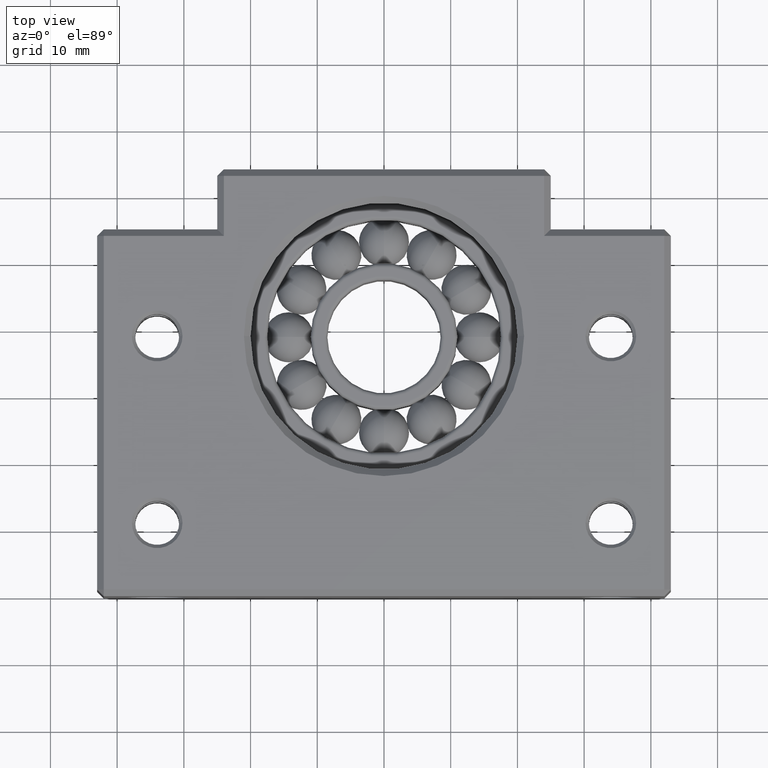
[diagram: clean part render]
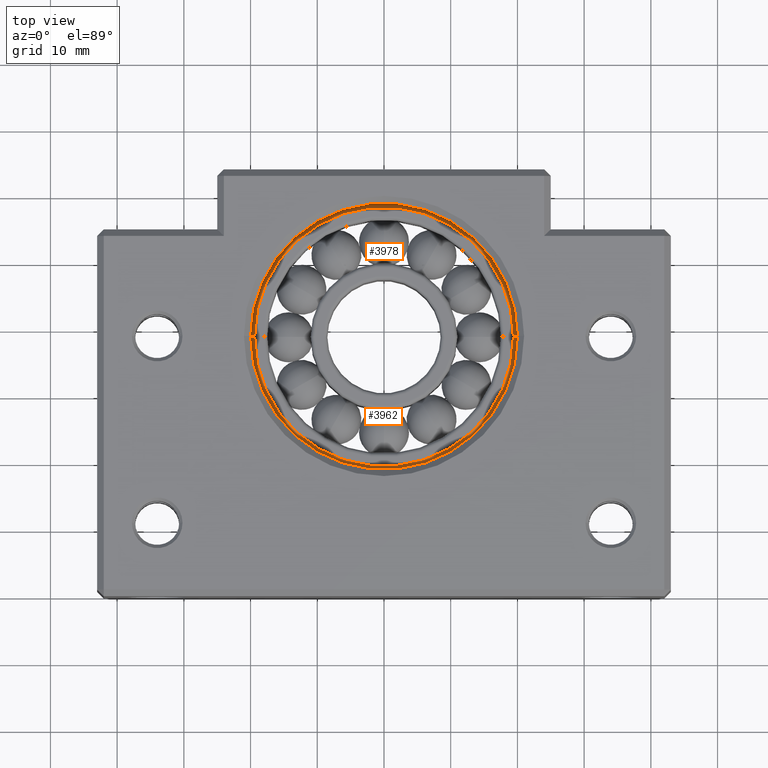
[diagram: same view with one multi-face feature highlighted, each face labeled with its STEP entity id]
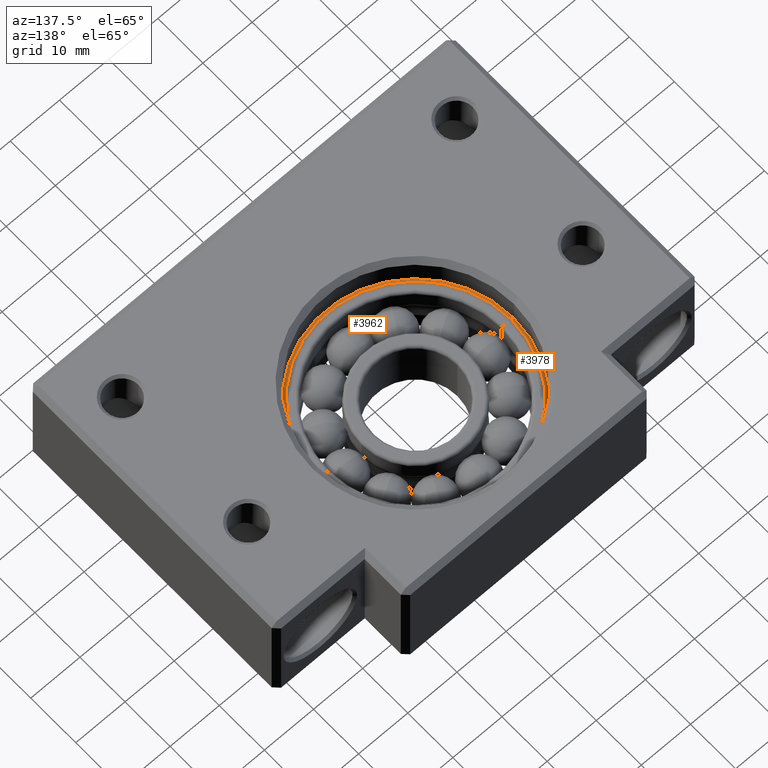
[diagram: same view with one multi-face feature highlighted, each face labeled with its STEP entity id]
A machine part, top view. The highlighted faces form ONE feature: a constant-radius fillet chain: 2 tangent blend faces with common blend radius 0.6 mm. The faces share edges in the B-rep.
A second angle (auxiliary view) of the same feature is appended — it is thin or edge-on in the first view.
Their STEP definitions:
[1] entity #3978 (Torus):
#2024 = CARTESIAN_POINT ( 'NONE',  ( -19.99999999999998600, 39.00000000000000700, 5.400000000000000400 ) ) ;
#2025 = CARTESIAN_POINT ( 'NONE',  ( 20.00000000000001400, 39.00000000000000700, 5.400000000000000400 ) ) ;
#2030 = DIRECTION ( 'NONE',  ( 1.000000000000000000, 0.0000000000000000000, 0.0000000000000000000 ) ) ;
#2031 = DIRECTION ( 'NONE',  ( -0.0000000000000000000, -0.0000000000000000000, 1.000000000000000000 ) ) ;
#2032 = CARTESIAN_POINT ( 'NONE',  ( 1.255275776586078800E-014, 39.00000000000000700, 5.400000000000000400 ) ) ;
#2033 = AXIS2_PLACEMENT_3D ( 'NONE', #2032, #2031, #2030 ) ;
#2034 = CIRCLE ( 'NONE', #2033, 20.00000000000000000 ) ;
#2036 = DIRECTION ( 'NONE',  ( 0.0000000000000000000, 0.0000000000000000000, -1.000000000000000000 ) ) ;
#2037 = DIRECTION ( 'NONE',  ( 0.0000000000000000000, -1.000000000000000000, 0.0000000000000000000 ) ) ;
#2038 = CARTESIAN_POINT ( 'NONE',  ( 19.40000000000001300, 39.00000000000000700, 5.400000000000000400 ) ) ;
#2039 = AXIS2_PLACEMENT_3D ( 'NONE', #2038, #2037, #2036 ) ;
#2040 = CIRCLE ( 'NONE', #2039, 0.5999999999999998700 ) ;
#2041 = CARTESIAN_POINT ( 'NONE',  ( 19.40000000000001300, 39.00000000000000700, 5.999999999999999100 ) ) ;
#2073 = CARTESIAN_POINT ( 'NONE',  ( -19.39999999999998800, 39.00000000000000700, 5.999999999999999100 ) ) ;
#2074 = DIRECTION ( 'NONE',  ( -1.000000000000000000, 0.0000000000000000000, 0.0000000000000000000 ) ) ;
#2075 = DIRECTION ( 'NONE',  ( 1.224606353822377300E-016, 1.000000000000000000, 0.0000000000000000000 ) ) ;
#2076 = CARTESIAN_POINT ( 'NONE',  ( -19.39999999999998800, 39.00000000000000700, 5.400000000000000400 ) ) ;
#2077 = AXIS2_PLACEMENT_3D ( 'NONE', #2076, #2075, #2074 ) ;
#2078 = DIRECTION ( 'NONE',  ( 1.000000000000000000, 0.0000000000000000000, 0.0000000000000000000 ) ) ;
#2079 = DIRECTION ( 'NONE',  ( -0.0000000000000000000, -0.0000000000000000000, 1.000000000000000000 ) ) ;
#2080 = CARTESIAN_POINT ( 'NONE',  ( 1.255275776586078800E-014, 39.00000000000000700, 5.400000000000000400 ) ) ;
#2081 = AXIS2_PLACEMENT_3D ( 'NONE', #2080, #2079, #2078 ) ;
#2082 = CIRCLE ( 'NONE', #2077, 0.5999999999999998700 ) ;
#2083 = TOROIDAL_SURFACE ( 'NONE', #2081, 19.40000000000000200, 0.5999999999999994200 ) ;
#2084 = FACE_OUTER_BOUND ( 'NONE', #3977, .T. ) ;
#2090 = DIRECTION ( 'NONE',  ( 1.000000000000000000, 0.0000000000000000000, 0.0000000000000000000 ) ) ;
#2091 = DIRECTION ( 'NONE',  ( -0.0000000000000000000, -0.0000000000000000000, 1.000000000000000000 ) ) ;
#2092 = CARTESIAN_POINT ( 'NONE',  ( 1.255275776586078800E-014, 39.00000000000000700, 5.999999999999999100 ) ) ;
#2093 = AXIS2_PLACEMENT_3D ( 'NONE', #2092, #2091, #2090 ) ;
#2094 = CIRCLE ( 'NONE', #2093, 19.40000000000000200 ) ;
#3941 = EDGE_CURVE ( 'NONE', #3943, #3946, #2034, .T. ) ;
#3943 = VERTEX_POINT ( 'NONE', #2025 ) ;
#3946 = VERTEX_POINT ( 'NONE', #2024 ) ;
#3965 = VERTEX_POINT ( 'NONE', #2041 ) ;
#3966 = ORIENTED_EDGE ( 'NONE', *, *, #3967, .F. ) ;
#3967 = EDGE_CURVE ( 'NONE', #3943, #3965, #2040, .T. ) ;
#3969 = EDGE_CURVE ( 'NONE', #3965, #3981, #2094, .T. ) ;
#3970 = ORIENTED_EDGE ( 'NONE', *, *, #3969, .F. ) ;
#3975 = ORIENTED_EDGE ( 'NONE', *, *, #3941, .T. ) ;
#3977 = EDGE_LOOP ( 'NONE', ( #3975, #3979, #3970, #3966 ) ) ;
#3978 = ADVANCED_FACE ( 'NONE', ( #2084 ), #2083, .T. ) ;
#3979 = ORIENTED_EDGE ( 'NONE', *, *, #3980, .T. ) ;
#3980 = EDGE_CURVE ( 'NONE', #3946, #3981, #2082, .T. ) ;
#3981 = VERTEX_POINT ( 'NONE', #2073 ) ;
[2] entity #3962 (Torus):
#2024 = CARTESIAN_POINT ( 'NONE',  ( -19.99999999999998600, 39.00000000000000700, 5.400000000000000400 ) ) ;
#2025 = CARTESIAN_POINT ( 'NONE',  ( 20.00000000000001400, 39.00000000000000700, 5.400000000000000400 ) ) ;
#2036 = DIRECTION ( 'NONE',  ( 0.0000000000000000000, 0.0000000000000000000, -1.000000000000000000 ) ) ;
#2037 = DIRECTION ( 'NONE',  ( 0.0000000000000000000, -1.000000000000000000, 0.0000000000000000000 ) ) ;
#2038 = CARTESIAN_POINT ( 'NONE',  ( 19.40000000000001300, 39.00000000000000700, 5.400000000000000400 ) ) ;
#2039 = AXIS2_PLACEMENT_3D ( 'NONE', #2038, #2037, #2036 ) ;
#2040 = CIRCLE ( 'NONE', #2039, 0.5999999999999998700 ) ;
#2041 = CARTESIAN_POINT ( 'NONE',  ( 19.40000000000001300, 39.00000000000000700, 5.999999999999999100 ) ) ;
#2047 = DIRECTION ( 'NONE',  ( 1.000000000000000000, 0.0000000000000000000, 0.0000000000000000000 ) ) ;
#2048 = DIRECTION ( 'NONE',  ( -0.0000000000000000000, -0.0000000000000000000, 1.000000000000000000 ) ) ;
#2049 = AXIS2_PLACEMENT_3D ( 'NONE', #2052, #2048, #2047 ) ;
#2050 = TOROIDAL_SURFACE ( 'NONE', #2049, 19.40000000000000200, 0.5999999999999994200 ) ;
#2052 = CARTESIAN_POINT ( 'NONE',  ( 1.255275776586078800E-014, 39.00000000000000700, 5.400000000000000400 ) ) ;
#2058 = FACE_OUTER_BOUND ( 'NONE', #3964, .T. ) ;
#2073 = CARTESIAN_POINT ( 'NONE',  ( -19.39999999999998800, 39.00000000000000700, 5.999999999999999100 ) ) ;
#2074 = DIRECTION ( 'NONE',  ( -1.000000000000000000, 0.0000000000000000000, 0.0000000000000000000 ) ) ;
#2075 = DIRECTION ( 'NONE',  ( 1.224606353822377300E-016, 1.000000000000000000, 0.0000000000000000000 ) ) ;
#2076 = CARTESIAN_POINT ( 'NONE',  ( -19.39999999999998800, 39.00000000000000700, 5.400000000000000400 ) ) ;
#2077 = AXIS2_PLACEMENT_3D ( 'NONE', #2076, #2075, #2074 ) ;
#2082 = CIRCLE ( 'NONE', #2077, 0.5999999999999998700 ) ;
#2117 = DIRECTION ( 'NONE',  ( 1.000000000000000000, 0.0000000000000000000, 0.0000000000000000000 ) ) ;
#2118 = DIRECTION ( 'NONE',  ( -0.0000000000000000000, -0.0000000000000000000, 1.000000000000000000 ) ) ;
#2119 = CARTESIAN_POINT ( 'NONE',  ( 1.255275776586078800E-014, 39.00000000000000700, 5.999999999999999100 ) ) ;
#2120 = AXIS2_PLACEMENT_3D ( 'NONE', #2119, #2118, #2117 ) ;
#2121 = CIRCLE ( 'NONE', #2120, 19.40000000000000200 ) ;
#2122 = DIRECTION ( 'NONE',  ( 1.000000000000000000, 0.0000000000000000000, 0.0000000000000000000 ) ) ;
#2123 = DIRECTION ( 'NONE',  ( -0.0000000000000000000, -0.0000000000000000000, 1.000000000000000000 ) ) ;
#2124 = CARTESIAN_POINT ( 'NONE',  ( 1.255275776586078800E-014, 39.00000000000000700, 5.400000000000000400 ) ) ;
#2125 = AXIS2_PLACEMENT_3D ( 'NONE', #2124, #2123, #2122 ) ;
#2126 = CIRCLE ( 'NONE', #2125, 20.00000000000000000 ) ;
#3943 = VERTEX_POINT ( 'NONE', #2025 ) ;
#3946 = VERTEX_POINT ( 'NONE', #2024 ) ;
#3960 = ORIENTED_EDGE ( 'NONE', *, *, #3980, .F. ) ;
#3962 = ADVANCED_FACE ( 'NONE', ( #2058 ), #2050, .T. ) ;
#3964 = EDGE_LOOP ( 'NONE', ( #3960, #3987, #3990, #3988 ) ) ;
#3965 = VERTEX_POINT ( 'NONE', #2041 ) ;
#3967 = EDGE_CURVE ( 'NONE', #3943, #3965, #2040, .T. ) ;
#3980 = EDGE_CURVE ( 'NONE', #3946, #3981, #2082, .T. ) ;
#3981 = VERTEX_POINT ( 'NONE', #2073 ) ;
#3987 = ORIENTED_EDGE ( 'NONE', *, *, #3989, .T. ) ;
#3988 = ORIENTED_EDGE ( 'NONE', *, *, #3992, .F. ) ;
#3989 = EDGE_CURVE ( 'NONE', #3946, #3943, #2126, .T. ) ;
#3990 = ORIENTED_EDGE ( 'NONE', *, *, #3967, .T. ) ;
#3992 = EDGE_CURVE ( 'NONE', #3981, #3965, #2121, .T. ) ;